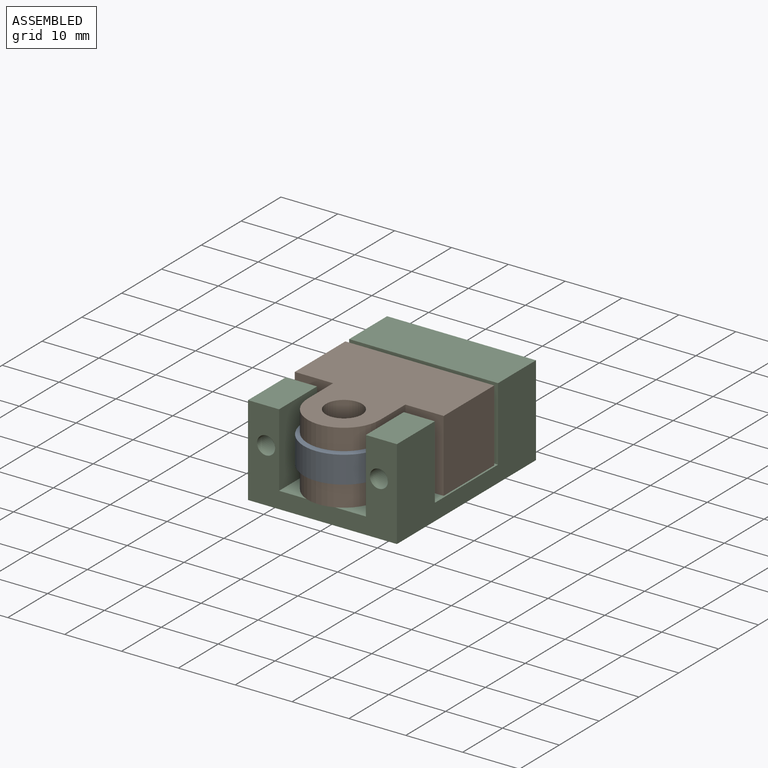
[diagram: assembled view]
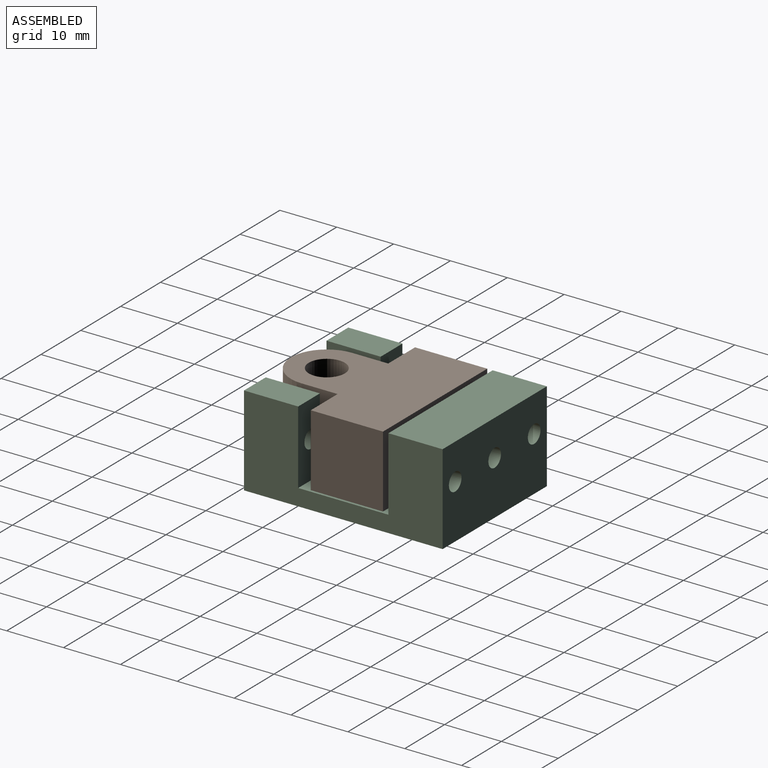
[diagram: assembled view, second angle]
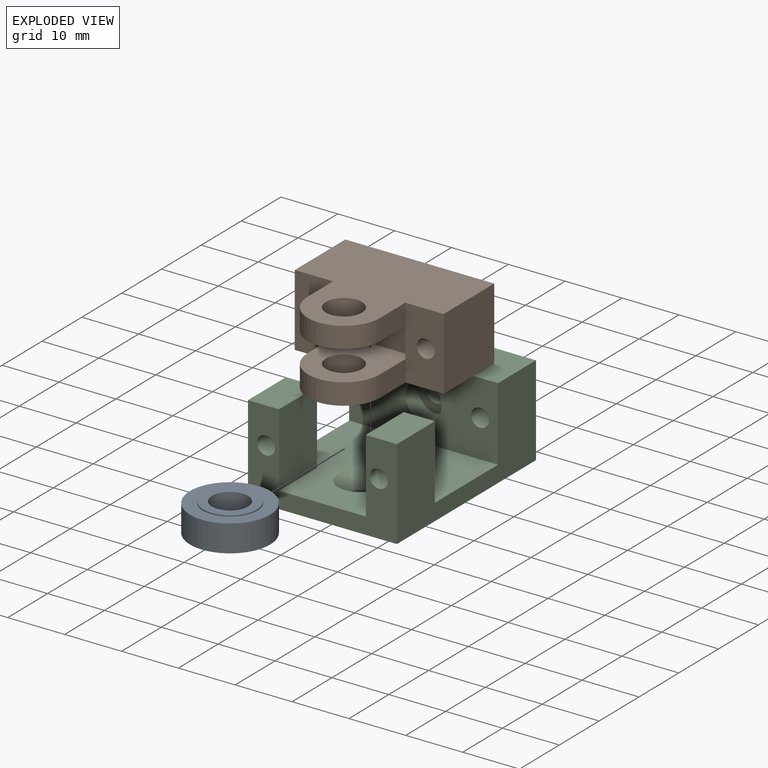
[diagram: exploded view]
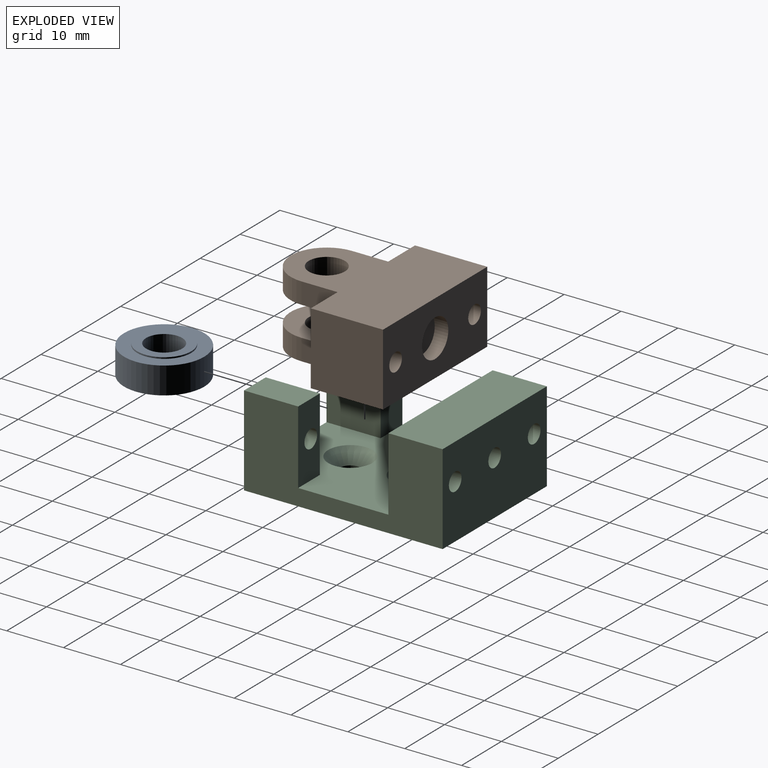
[diagram: exploded view, second angle]
ASSEMBLY  parts=3 mates=2
PART A: 8 faces, bbox 14.1x14.1x5.3 mm
  f0: cylinder r=7.05mm len=14.1mm, axis (0,0,-1), area 210.4mm2, adj f1,f2
  f1: plane 14.1x14.1mm, normal (0,0,1), area 84.8mm2, adj f0,f3
  f2: plane 14.1x14.1mm, normal (0,0,-1), area 84.8mm2, adj f0,f5
  f3: cylinder r=4.76mm len=9.53mm, axis (0,0,-1), area 7.6mm2, adj f1,f4
  f4: plane 9.53x9.53mm, normal (0,0,1), area 39.6mm2, adj f3,f7
  f5: cylinder r=4.76mm len=9.53mm, axis (0,0,1), area 7.6mm2, adj f2,f6
  f6: plane 9.53x9.53mm, normal (0,0,-1), area 39.6mm2, adj f5,f7
  f7: cylinder r=3.17mm len=6.35mm, axis (0,0,-1), area 104.9mm2, adj f4,f6
PART B: 24 faces, bbox 26.2x25.4x12.7 mm
  f0: plane 12.7x6.74mm, normal (0,-1,0), area 77.7mm2, adj f1,f5,f10,f13,f14,f15,f22
  f1: plane 6.35x3.73mm, normal (-1,0,0), area 23.7mm2, adj f0,f6,f14,f19
  f2: plane 6.35x3.73mm, normal (1,0,0), area 23.7mm2, adj f6,f12,f14,f19
  f3: cylinder r=6.35mm len=12.7mm, axis (0,0,-1), area 74mm2, adj f5,f7,f13,f20
  f4: cylinder r=3.17mm len=6.35mm, axis (0,0,-1), area 74mm2, adj f13,f20
  f5: plane 6.35x3.71mm, normal (-1,0,0), area 23.5mm2, adj f0,f3,f13,f20
  f6: cylinder r=6.35mm len=12.7mm, axis (0,0,-1), area 74.5mm2, adj f1,f2,f14,f19
  f7: plane 6.35x3.71mm, normal (1,0,0), area 23.5mm2, adj f3,f12,f13,f20
  f8: plane 12.7x12.7mm, normal (1,0,0), area 161.3mm2, adj f9,f12,f13,f14
  f9: plane 26.19x12.7mm, normal (0,1,0), area 282.5mm2, adj f8,f10,f13,f14,f15,f16,f17
  f10: plane 12.7x12.7mm, normal (-1,0,0), area 161.3mm2, adj f0,f9,f13,f14
  f11: cylinder r=3.17mm len=6.35mm, axis (0,0,-1), area 74.5mm2, adj f14,f19
  f12: plane 12.7x6.74mm, normal (0,-1,0), area 77.7mm2, adj f2,f7,f8,f13,f14,f16,f21
  f13: plane 26.19x25.4mm, normal (0,0,1), area 444.9mm2, adj f0,f3,f4,f5,f7,f8,f9,f10
  f14: plane 26.19x25.4mm, normal (0,0,-1), area 444.9mm2, adj f0,f1,f2,f6,f8,f9,f10,f11
  f15: cylinder r=1.59mm len=12.7mm, axis (0,1,0), area 126.7mm2, adj f0,f9
  f16: cylinder r=1.59mm len=12.7mm, axis (0,1,0), area 126.7mm2, adj f9,f12
  f17: cylinder r=3.3mm len=6.6mm, axis (0,1,0), area 49.5mm2, adj f9,f18
  f18: plane 6.6x6.6mm, normal (0,1,0), area 34.3mm2, adj f17
  f19: plane 14.27x12.7mm, normal (0,0,1), area 132.3mm2, adj f1,f2,f6,f11,f21,f22,f23
  f20: plane 14.27x12.7mm, normal (0,0,-1), area 132.3mm2, adj f3,f4,f5,f7,f21,f22,f23
  f21: plane 5.26x1.57mm, normal (-1,0,0), area 8.3mm2, adj f12,f19,f20,f23
  f22: plane 5.26x1.57mm, normal (1,0,0), area 8.3mm2, adj f0,f19,f20,f23
  f23: plane 12.7x5.26mm, normal (0,-1,0), area 66.8mm2, adj f19,f20,f21,f22
PART C: 25 faces, bbox 26.2x34.9x15.9 mm
  f0: plane 9.53x5.46mm, normal (0,0,1), area 52mm2, adj f3,f5,f8,f9
  f1: plane 9.53x5.46mm, normal (0,0,1), area 52mm2, adj f5,f6,f10,f11
  f2: plane 26.19x9.53mm, normal (0,0,1), area 249.4mm2, adj f3,f4,f6,f12
  f3: plane 34.93x15.88mm, normal (-1,0,0), area 348.8mm2, adj f0,f2,f4,f5,f7,f8,f12,f13
  f4: plane 26.19x15.88mm, normal (0,1,0), area 392mm2, adj f2,f3,f6,f7,f14,f15,f18
  f5: plane 26.19x15.88mm, normal (0,-1,0), area 202.1mm2, adj f0,f1,f3,f6,f7,f9,f10,f13
  f6: plane 34.93x15.88mm, normal (1,0,0), area 348.8mm2, adj f1,f2,f4,f5,f7,f11,f12,f13
  f7: plane 34.93x26.19mm, normal (0,0,-1), area 891.9mm2, adj f3,f4,f5,f6,f19,f21
  f8: plane 12.95x5.46mm, normal (0,1,0), area 62.8mm2, adj f0,f3,f9,f13,f17
  f9: plane 12.95x9.53mm, normal (1,0,0), area 123.4mm2, adj f0,f5,f8,f13
  f10: plane 12.95x9.53mm, normal (-1,0,0), area 123.4mm2, adj f1,f5,f11,f13
  f11: plane 12.95x5.46mm, normal (0,1,0), area 62.8mm2, adj f1,f6,f10,f13,f16
  f12: plane 26.19x12.95mm, normal (0,-1,0), area 291.7mm2, adj f2,f3,f6,f13,f14,f15,f23
  f13: plane 26.19x25.4mm, normal (0,0,1), area 465.6mm2, adj f3,f5,f6,f8,f9,f10,f11,f12
  f14: cylinder r=1.59mm len=9.53mm, axis (0,-1,0), area 95mm2, adj f4,f12
  f15: cylinder r=1.59mm len=9.53mm, axis (0,-1,0), area 95mm2, adj f4,f12
  f16: cylinder r=1.59mm len=9.53mm, axis (0,-1,0), area 95mm2, adj f5,f11
  f17: cylinder r=1.59mm len=9.53mm, axis (0,-1,0), area 95mm2, adj f5,f8
  f18: cylinder r=1.59mm len=6.35mm, axis (0,-1,0), area 63.3mm2, adj f4,f24
  f19: cylinder r=1.9mm len=3.8mm, axis (0,0,1), area 7.4mm2, adj f7,f20
  f20: cone r=1.9mm half-angle=41deg, axis (0,0,1), area 55.5mm2, adj f13,f19
  f21: cylinder r=1.9mm len=3.8mm, axis (0,0,1), area 7.4mm2, adj f7,f22
  f22: cone r=1.9mm half-angle=41deg, axis (0,0,1), area 55.5mm2, adj f13,f21
  f23: cylinder r=3.17mm len=6.35mm, axis (0,-1,0), area 63.3mm2, adj f12,f24
  f24: plane 6.35x6.35mm, normal (0,-1,0), area 23.8mm2, adj f18,f23
PLACE A rot(axis=(0,0,1),90deg) t=(9.34,-23.18,-6.17)mm
PLACE B t=(-3.76,-4.13,-10.16)mm
PLACE C t=(-3.76,-28.58,-13.34)mm fixed
MATE revolute A.f0 <-> B.f3  axis (0,0,1) through (9.34,-23.18,-1.17)mm
MATE slider C.f15 <-> B.f16  axis (0,-1,0) through (19.26,-3.17,-3.81)mm
